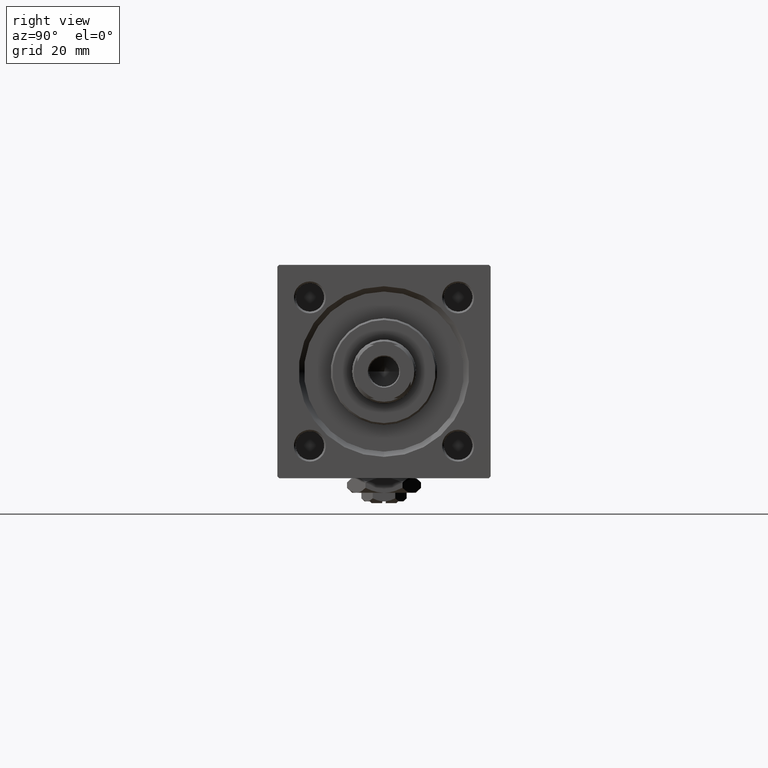
[diagram: clean part render]
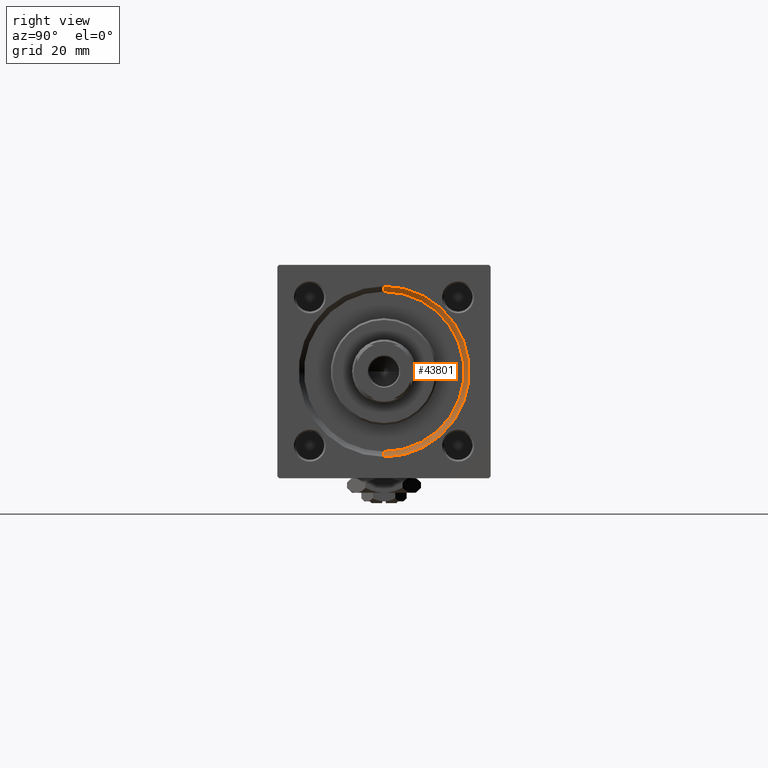
[diagram: same view with one face highlighted and labeled with its STEP entity id]
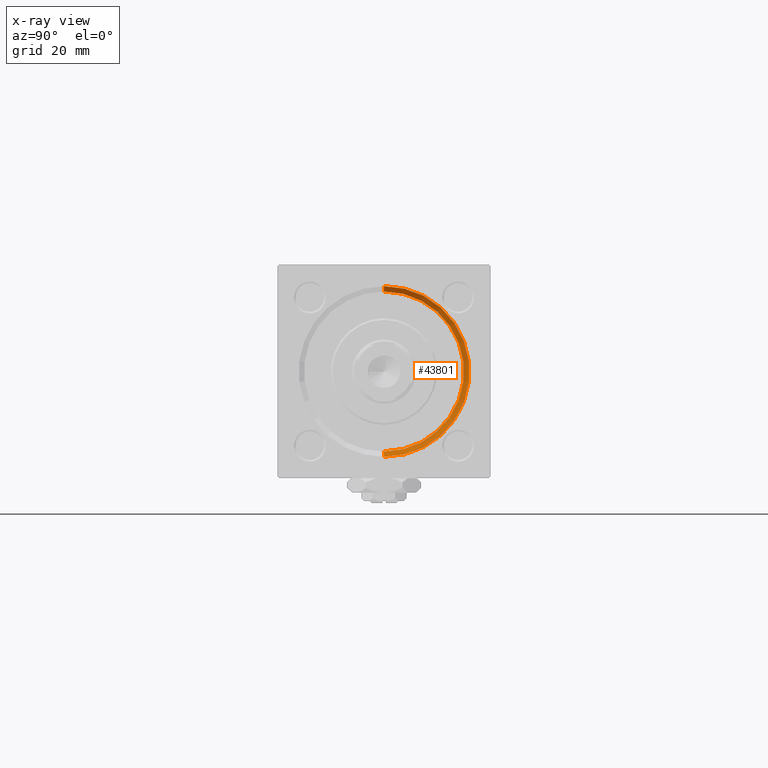
[diagram: x-ray of the same camera — body ghosted, the highlighted face saturated]
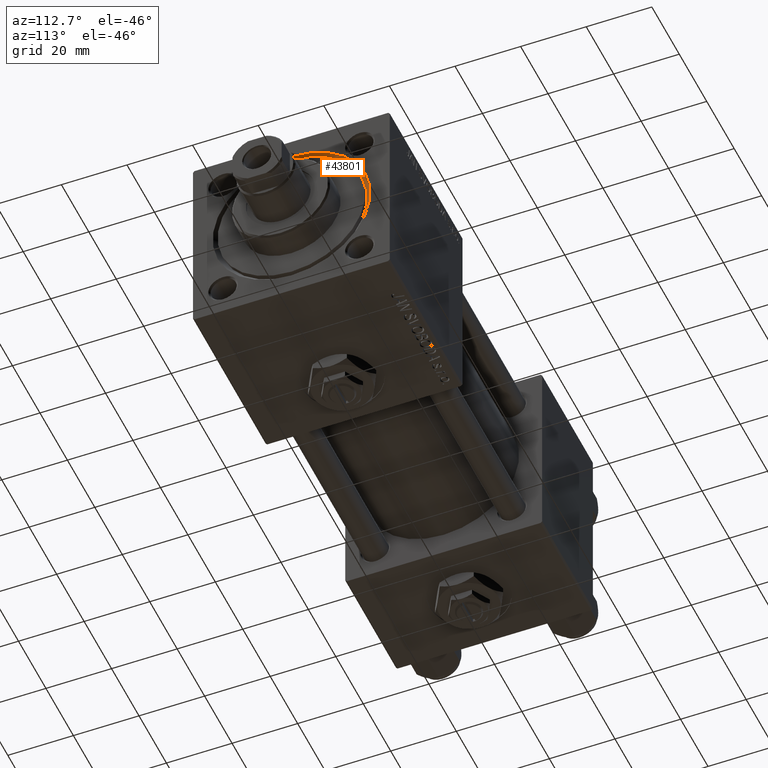
[diagram: same view with one face highlighted and labeled with its STEP entity id]
A machine part, right view. The second image highlights one B-rep face of the part: STEP entity #43801.
The next image is the same camera in x-ray: the body ghosted, the highlighted face saturated — about 0% of this face is hidden behind the body in this view.
A second angle (auxiliary view) of the same face is appended — the face is thin or edge-on in the first view.
In plain terms, the highlighted conical surface has half-angle 45 deg.
Its self-contained STEP definition (entity closure, byte-faithful):
#3017 = DIRECTION ( 'NONE',  ( 0.7071067811865524577, 0.000000000000000000, -0.7071067811865426878 ) ) ;
#3450 = CARTESIAN_POINT ( 'NONE',  ( 146.4999999999999432, 0.000000000000000000, -22.50000000000000355 ) ) ;
#7542 = EDGE_CURVE ( 'NONE', #14611, #17217, #7770, .T. ) ;
#7770 = LINE ( 'NONE', #27312, #11890 ) ;
#9556 = DIRECTION ( 'NONE',  ( 0.000000000000000000, 0.000000000000000000, 1.000000000000000000 ) ) ;
#9651 = DIRECTION ( 'NONE',  ( 0.000000000000000000, 0.000000000000000000, -1.000000000000000000 ) ) ;
#9989 = EDGE_CURVE ( 'NONE', #49889, #17217, #51629, .T. ) ;
#11890 = VECTOR ( 'NONE', #3017, 1000.000000000000000 ) ;
#13057 = CARTESIAN_POINT ( 'NONE',  ( 146.4999999999999432, 2.755455298081545172E-15, 22.50000000000000355 ) ) ;
#14240 = EDGE_LOOP ( 'NONE', ( #37978, #25981, #48437, #18006 ) ) ;
#14286 = DIRECTION ( 'NONE',  ( -1.000000000000000000, 0.000000000000000000, -0.000000000000000000 ) ) ;
#14611 = VERTEX_POINT ( 'NONE', #3450 ) ;
#17028 = LINE ( 'NONE', #13057, #30366 ) ;
#17217 = VERTEX_POINT ( 'NONE', #44121 ) ;
#18006 = ORIENTED_EDGE ( 'NONE', *, *, #9989, .F. ) ;
#18624 = CARTESIAN_POINT ( 'NONE',  ( 148.0000000000000000, 2.939152317953652628E-15, 24.00000000000003908 ) ) ;
#22604 = CONICAL_SURFACE ( 'NONE', #44589, 22.50000000000000355, 0.7853981633974415066 ) ;
#25860 = CARTESIAN_POINT ( 'NONE',  ( 146.4999999999999432, 0.000000000000000000, 0.000000000000000000 ) ) ;
#25918 = CARTESIAN_POINT ( 'NONE',  ( 148.0000000000000000, 0.000000000000000000, 0.000000000000000000 ) ) ;
#25981 = ORIENTED_EDGE ( 'NONE', *, *, #33191, .F. ) ;
#26269 = AXIS2_PLACEMENT_3D ( 'NONE', #25918, #14286, #9556 ) ;
#27312 = CARTESIAN_POINT ( 'NONE',  ( 146.4999999999999432, 0.000000000000000000, -22.50000000000000355 ) ) ;
#28668 = CARTESIAN_POINT ( 'NONE',  ( 146.4999999999999432, 0.000000000000000000, 0.000000000000000000 ) ) ;
#30366 = VECTOR ( 'NONE', #44801, 1000.000000000000000 ) ;
#33191 = EDGE_CURVE ( 'NONE', #14611, #49947, #33615, .T. ) ;
#33438 = FACE_OUTER_BOUND ( 'NONE', #14240, .T. ) ;
#33615 = CIRCLE ( 'NONE', #42062, 22.50000000000000355 ) ;
#36623 = DIRECTION ( 'NONE',  ( 1.000000000000000000, 0.000000000000000000, 0.000000000000000000 ) ) ;
#37978 = ORIENTED_EDGE ( 'NONE', *, *, #47497, .F. ) ;
#41996 = DIRECTION ( 'NONE',  ( 1.000000000000000000, 0.000000000000000000, 0.000000000000000000 ) ) ;
#42062 = AXIS2_PLACEMENT_3D ( 'NONE', #25860, #41996, #45973 ) ;
#43801 = ADVANCED_FACE ( 'NONE', ( #33438 ), #22604, .F. ) ;
#44121 = CARTESIAN_POINT ( 'NONE',  ( 148.0000000000000000, 0.000000000000000000, -24.00000000000003908 ) ) ;
#44589 = AXIS2_PLACEMENT_3D ( 'NONE', #28668, #36623, #9651 ) ;
#44801 = DIRECTION ( 'NONE',  ( 0.7071067811865524577, 8.659560562354874926E-17, 0.7071067811865426878 ) ) ;
#45973 = DIRECTION ( 'NONE',  ( 0.000000000000000000, 0.000000000000000000, 1.000000000000000000 ) ) ;
#47497 = EDGE_CURVE ( 'NONE', #49947, #49889, #17028, .T. ) ;
#48437 = ORIENTED_EDGE ( 'NONE', *, *, #7542, .T. ) ;
#49889 = VERTEX_POINT ( 'NONE', #18624 ) ;
#49947 = VERTEX_POINT ( 'NONE', #50905 ) ;
#50905 = CARTESIAN_POINT ( 'NONE',  ( 146.4999999999999432, 2.755455298081545172E-15, 22.50000000000000355 ) ) ;
#51629 = CIRCLE ( 'NONE', #26269, 24.00000000000003908 ) ;